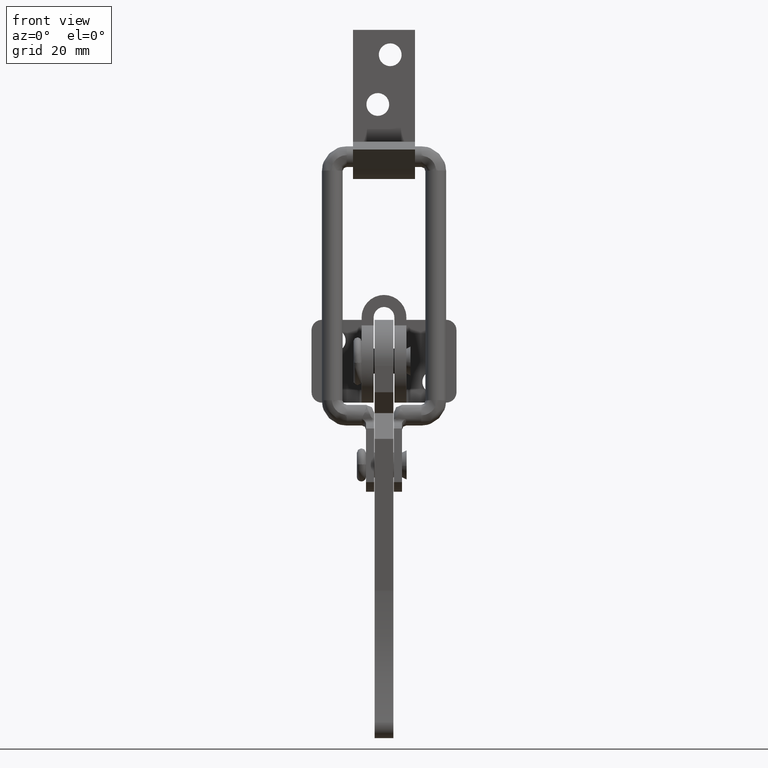
[diagram: clean part render]
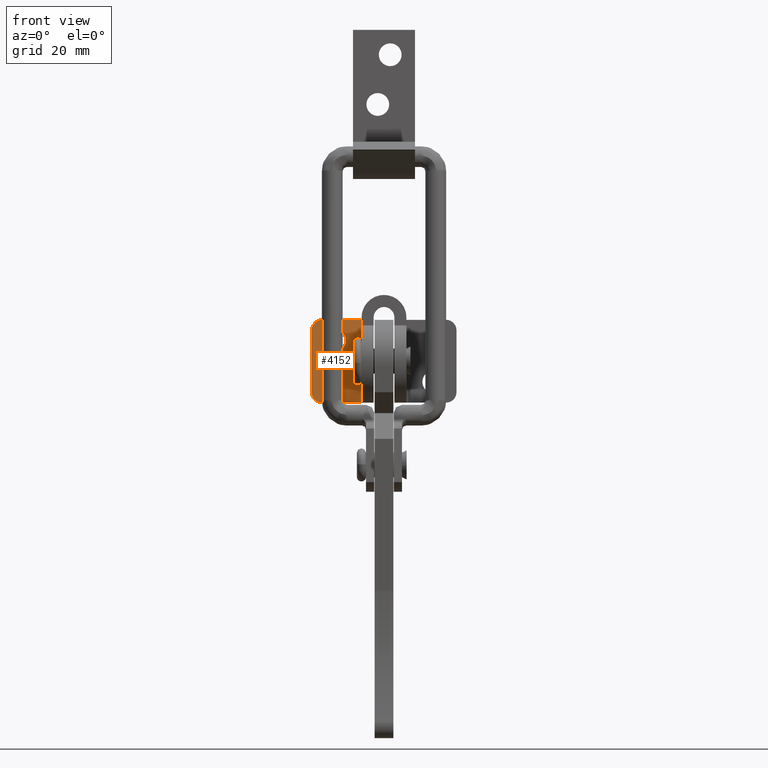
[diagram: same view with one face highlighted and labeled with its STEP entity id]
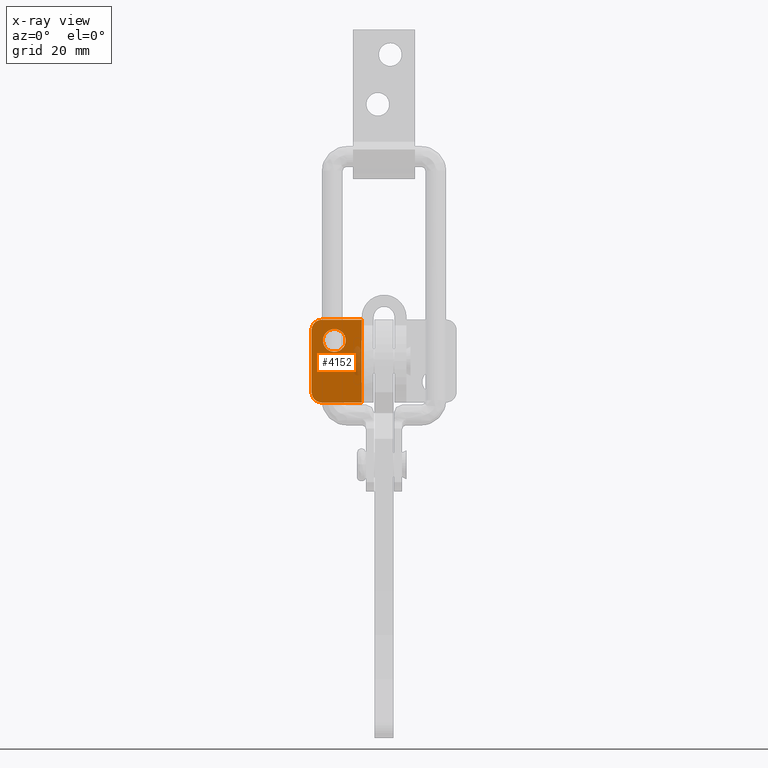
[diagram: x-ray of the same camera — body ghosted, the highlighted face saturated]
A machine part, front view. The second image highlights one B-rep face of the part: STEP entity #4152.
The next image is the same camera in x-ray: the body ghosted, the highlighted face saturated — about 6% of this face is hidden behind the body in this view.
In plain terms, the highlighted face is a freeform B-spline surface patch.
Its self-contained STEP definition (entity closure, byte-faithful):
#3135=CARTESIAN_POINT('',(-12.0,14.100000000000000,2.250000000000000));
#3136=VERTEX_POINT('',#3135);
#3137=CARTESIAN_POINT('',(-9.258477332289230,14.100000000000000,4.784237486045372));
#3138=VERTEX_POINT('',#3137);
#3139=CARTESIAN_POINT('',(-12.0,14.100000000000000,2.250000000000000));
#3140=CARTESIAN_POINT('',(-9.457926149247772,14.100000000000005,2.250000000000000));
#3141=CARTESIAN_POINT('',(-9.258477332289230,14.099999999999998,4.784237486045372));
#3149=(BOUNDED_CURVE()B_SPLINE_CURVE(2,(#3139,#3140,#3141),.UNSPECIFIED.,.F.,.U.)B_SPLINE_CURVE_WITH_KNOTS((3,3),(0.0,0.236331300544845),.UNSPECIFIED.)CURVE()GEOMETRIC_REPRESENTATION_ITEM()RATIONAL_B_SPLINE_CURVE((1.0,0.723120658708204,0.969723355988328))REPRESENTATION_ITEM(''));
#3150=EDGE_CURVE('',#3136,#3138,#3149,.T.);
#3191=CARTESIAN_POINT('',(-14.741522667710770,14.100000000000000,5.215762513954626));
#3192=VERTEX_POINT('',#3191);
#3198=CARTESIAN_POINT('',(-14.741522667710772,14.099999999999994,5.215762513954626));
#3199=CARTESIAN_POINT('',(-14.750000000000002,14.099999999999994,5.108047794977406));
#3200=CARTESIAN_POINT('',(-14.750000000000000,14.100000000000000,5.0));
#3201=CARTESIAN_POINT('',(-14.750000000000005,14.100000000000000,2.250000000000000));
#3202=CARTESIAN_POINT('',(-12.0,14.100000000000000,2.250000000000000));
#3210=(BOUNDED_CURVE()B_SPLINE_CURVE(2,(#3198,#3199,#3200,#3201,#3202),.UNSPECIFIED.,.F.,.U.)B_SPLINE_CURVE_WITH_KNOTS((3,2,3),(0.736331300544845,0.750000000000000,1.0),.UNSPECIFIED.)CURVE()GEOMETRIC_REPRESENTATION_ITEM()RATIONAL_B_SPLINE_CURVE((0.969723355988329,0.983986122478344,1.0,0.707106781186548,1.0))REPRESENTATION_ITEM(''));
#3211=EDGE_CURVE('',#3192,#3136,#3210,.T.);
#3234=CARTESIAN_POINT('',(-12.0,14.100000000000000,7.750000000000000));
#3235=VERTEX_POINT('',#3234);
#3236=CARTESIAN_POINT('',(-9.258477332289230,14.100000000000001,4.784237486045372));
#3237=CARTESIAN_POINT('',(-9.250000000000000,14.099999999999998,4.891952205022593));
#3238=CARTESIAN_POINT('',(-9.250000000000002,14.100000000000000,5.0));
#3239=CARTESIAN_POINT('',(-9.250000000000002,14.100000000000000,7.750000000000001));
#3240=CARTESIAN_POINT('',(-12.0,14.100000000000000,7.750000000000000));
#3248=(BOUNDED_CURVE()B_SPLINE_CURVE(2,(#3236,#3237,#3238,#3239,#3240),.UNSPECIFIED.,.F.,.U.)B_SPLINE_CURVE_WITH_KNOTS((3,2,3),(0.236331300544845,0.250000000000000,0.500000000000000),.UNSPECIFIED.)CURVE()GEOMETRIC_REPRESENTATION_ITEM()RATIONAL_B_SPLINE_CURVE((0.969723355988328,0.983986122478343,1.0,0.707106781186548,1.0))REPRESENTATION_ITEM(''));
#3249=EDGE_CURVE('',#3138,#3235,#3248,.T.);
#3251=CARTESIAN_POINT('',(-12.0,14.100000000000000,7.750000000000000));
#3252=CARTESIAN_POINT('',(-14.542073850752244,14.100000000000005,7.750000000000002));
#3253=CARTESIAN_POINT('',(-14.741522667710766,14.100000000000000,5.215762513954626));
#3261=(BOUNDED_CURVE()B_SPLINE_CURVE(2,(#3251,#3252,#3253),.UNSPECIFIED.,.F.,.U.)B_SPLINE_CURVE_WITH_KNOTS((3,3),(0.500000000000000,0.736331300544845),.UNSPECIFIED.)CURVE()GEOMETRIC_REPRESENTATION_ITEM()RATIONAL_B_SPLINE_CURVE((1.0,0.723120658708203,0.969723355988330))REPRESENTATION_ITEM(''));
#3262=EDGE_CURVE('',#3235,#3192,#3261,.T.);
#4006=CARTESIAN_POINT('',(-17.500000000000000,14.100000000000000,7.500000000000000));
#4007=VERTEX_POINT('',#4006);
#4013=CARTESIAN_POINT('',(-15.0,14.100000000000000,10.0));
#4014=VERTEX_POINT('',#4013);
#4015=CARTESIAN_POINT('',(-15.0,14.100000000000000,10.0));
#4016=CARTESIAN_POINT('',(-17.499999999999996,14.100000000000000,10.000000000000002));
#4017=CARTESIAN_POINT('',(-17.500000000000000,14.100000000000000,7.500000000000000));
#4025=(BOUNDED_CURVE()B_SPLINE_CURVE(2,(#4015,#4016,#4017),.UNSPECIFIED.,.F.,.U.)CURVE()GEOMETRIC_REPRESENTATION_ITEM()QUASI_UNIFORM_CURVE()RATIONAL_B_SPLINE_CURVE((1.0,0.707106781186548,1.0))REPRESENTATION_ITEM(''));
#4026=EDGE_CURVE('',#4014,#4007,#4025,.T.);
#4048=CARTESIAN_POINT('',(-17.500000000000000,14.100000000000000,-7.500000000000000));
#4049=VERTEX_POINT('',#4048);
#4055=CARTESIAN_POINT('',(-17.500000000000000,14.100000000000000,-7.500000000000000));
#4056=CARTESIAN_POINT('',(-17.500000000000000,14.100000000000000,7.500000000000000));
#4057=QUASI_UNIFORM_CURVE('',1,(#4055,#4056),.UNSPECIFIED.,.F.,.U.);
#4058=EDGE_CURVE('',#4049,#4007,#4057,.T.);
#4093=CARTESIAN_POINT('',(-15.0,14.100000000000000,-10.0));
#4094=VERTEX_POINT('',#4093);
#4100=CARTESIAN_POINT('',(-17.500000000000000,14.100000000000000,-7.500000000000000));
#4101=CARTESIAN_POINT('',(-17.499999999999996,14.100000000000000,-10.000000000000002));
#4102=CARTESIAN_POINT('',(-15.0,14.100000000000000,-10.0));
#4110=(BOUNDED_CURVE()B_SPLINE_CURVE(2,(#4100,#4101,#4102),.UNSPECIFIED.,.F.,.U.)CURVE()GEOMETRIC_REPRESENTATION_ITEM()QUASI_UNIFORM_CURVE()RATIONAL_B_SPLINE_CURVE((1.0,0.707106781186548,1.0))REPRESENTATION_ITEM(''));
#4111=EDGE_CURVE('',#4049,#4094,#4110,.T.);
#4117=CARTESIAN_POINT('',(-18.104394976547852,14.100000000000000,-10.998999961236120));
#4118=CARTESIAN_POINT('',(-4.795604698904857,14.100000000000000,-10.998999961236120));
#4119=CARTESIAN_POINT('',(-18.104394976547852,14.100000000000000,10.999000497677921));
#4120=CARTESIAN_POINT('',(-4.795604698904857,14.100000000000000,10.999000497677921));
#4121=B_SPLINE_SURFACE_WITH_KNOTS('',1,1,((#4117,#4119),(#4118,#4120)),.UNSPECIFIED.,.F.,.F.,.U.,(2,2),(2,2),(0.0,13.308790277643000),(0.0,21.998000458914039),.UNSPECIFIED.);
#4122=CARTESIAN_POINT('',(-5.400000000000000,14.100000000000000,10.0));
#4123=VERTEX_POINT('',#4122);
#4124=CARTESIAN_POINT('',(-5.400000000000000,14.100000000000000,-10.0));
#4125=VERTEX_POINT('',#4124);
#4126=CARTESIAN_POINT('',(-5.400000000000000,14.100000000000000,10.0));
#4127=CARTESIAN_POINT('',(-5.400000000000000,14.100000000000000,-10.0));
#4128=QUASI_UNIFORM_CURVE('',1,(#4126,#4127),.UNSPECIFIED.,.F.,.U.);
#4129=EDGE_CURVE('',#4123,#4125,#4128,.T.);
#4130=ORIENTED_EDGE('',*,*,#4129,.F.);
#4131=CARTESIAN_POINT('',(-15.0,14.100000000000000,10.0));
#4132=CARTESIAN_POINT('',(-5.400000000000000,14.100000000000000,10.0));
#4133=QUASI_UNIFORM_CURVE('',1,(#4131,#4132),.UNSPECIFIED.,.F.,.U.);
#4134=EDGE_CURVE('',#4014,#4123,#4133,.T.);
#4135=ORIENTED_EDGE('',*,*,#4134,.F.);
#4136=ORIENTED_EDGE('',*,*,#4026,.T.);
#4137=ORIENTED_EDGE('',*,*,#4058,.F.);
#4138=ORIENTED_EDGE('',*,*,#4111,.T.);
#4139=CARTESIAN_POINT('',(-5.400000000000000,14.100000000000000,-10.0));
#4140=CARTESIAN_POINT('',(-15.0,14.100000000000000,-10.0));
#4141=QUASI_UNIFORM_CURVE('',1,(#4139,#4140),.UNSPECIFIED.,.F.,.U.);
#4142=EDGE_CURVE('',#4125,#4094,#4141,.T.);
#4143=ORIENTED_EDGE('',*,*,#4142,.F.);
#4144=EDGE_LOOP('',(#4130,#4135,#4136,#4137,#4138,#4143));
#4145=FACE_OUTER_BOUND('',#4144,.T.);
#4146=ORIENTED_EDGE('',*,*,#3262,.F.);
#4147=ORIENTED_EDGE('',*,*,#3249,.F.);
#4148=ORIENTED_EDGE('',*,*,#3150,.F.);
#4149=ORIENTED_EDGE('',*,*,#3211,.F.);
#4150=EDGE_LOOP('',(#4146,#4147,#4148,#4149));
#4151=FACE_BOUND('',#4150,.T.);
#4152=ADVANCED_FACE('',(#4145,#4151),#4121,.T.);